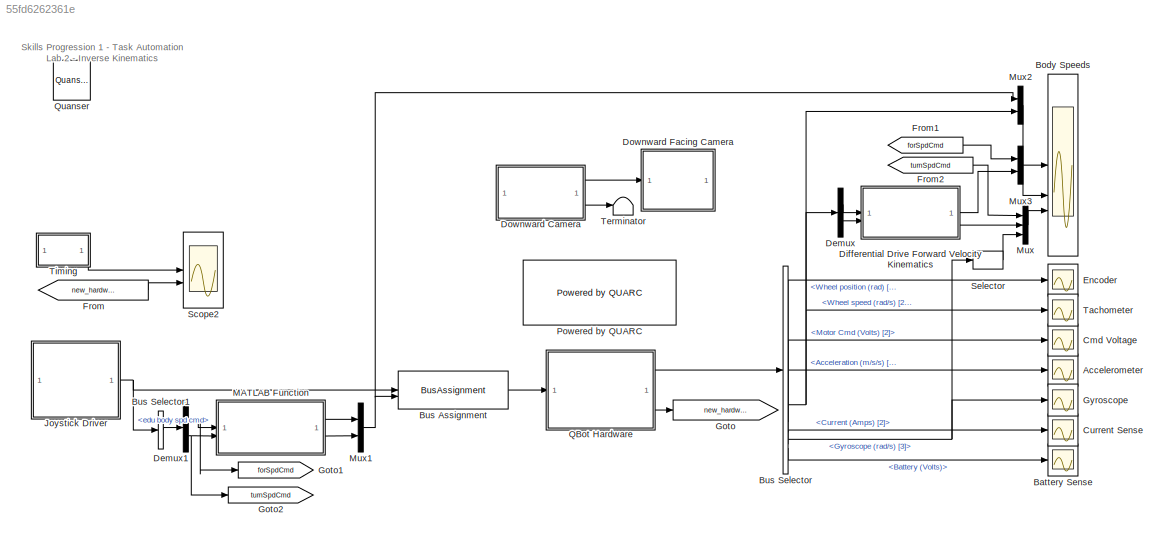
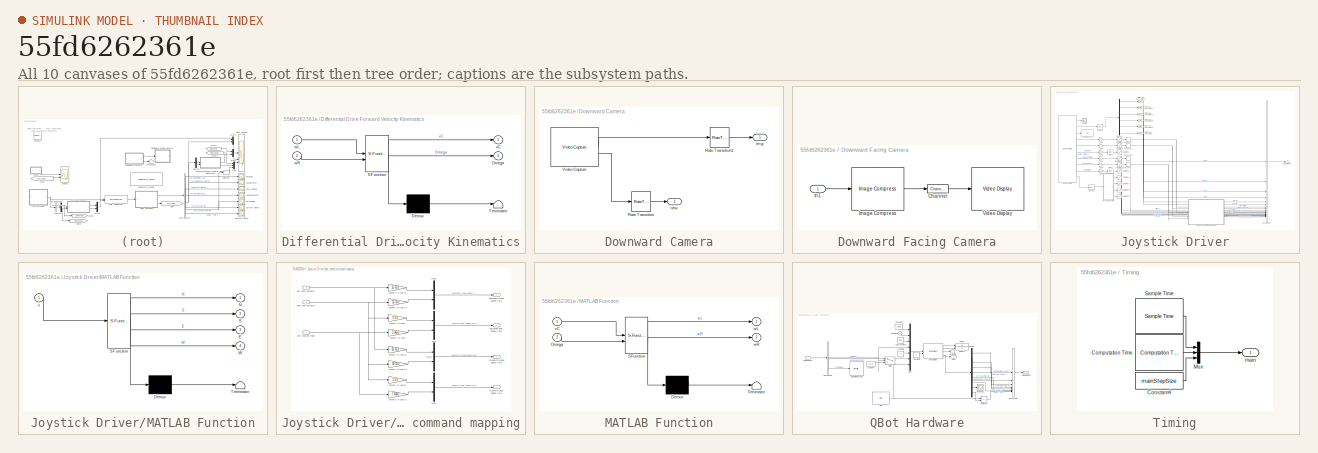
[diagram: thumbnail index - all 10 canvases of the model, root first then tree order]
MODEL slx_55fd6262361e
KIND model
CONFIG AbsTol = auto
CONFIG EnableMultiTasking = on
CONFIG FixedStep = 1/30
CONFIG MaxStep = auto
CONFIG MinStep = auto
CONFIG RelTol = 1e-3
CONFIG SampleTimeConstraint = Unconstrained
CONFIG SolverName = ode1
CONFIG StartTime = 0.0
CONFIG StopTime = inf
WORKSPACE source: mxarray member
WORKSPACE downCamStepSize: Simulink.Parameter (value not decoded)
WORKSPACE lidarStepSize: Simulink.Parameter (value not decoded)
WORKSPACE mainStepSize: Simulink.Parameter (value not decoded)
WORKSPACE mode: Simulink.Parameter (value not decoded)
WORKSPACE realSenseStepSize: Simulink.Parameter (value not decoded)
BLOCK [Scope] Accelerometer
  Floating = off
  NameLocation = right
  NumInputPorts = 1
  ScopeSpecificationString = Simulink.scopes.TimeScopeBlockCfg('CurrentConfiguration', extmgr.ConfigurationSet(extmgr.Configuration('Core','General UI',true),extmgr.Configuration('Core','Source UI',true),extmgr.Configuration('Sources','WiredSimulink',true,'DataLoggingVariableName','ScopeData5'),extmgr.Configuration('Visuals','Time Domain',true,'SerializedDisplays',{struct('MinYLimReal','-1.32758','MaxYLimReal','11.23','YLabel...<+1468ch>
BLOCK [Scope] Battery Sense
  Floating = off
  NameLocation = right
  NumInputPorts = 1
  ScopeSpecificationString = Simulink.scopes.TimeScopeBlockCfg('CurrentConfiguration', extmgr.ConfigurationSet(extmgr.Configuration('Core','General UI',true),extmgr.Configuration('Core','Source UI',true),extmgr.Configuration('Sources','WiredSimulink',true,'DataLoggingVariableName','ScopeData8'),extmgr.Configuration('Visuals','Time Domain',true,'SerializedDisplays',{struct('MinYLimReal','12.81161','MaxYLimReal','12.96349','YLa...<+1408ch>
BLOCK [Scope] Body Speeds
  Floating = off
  NameLocation = right
  NumInputPorts = 3
  ScopeSpecificationString = Simulink.scopes.TimeScopeBlockCfg('CurrentConfiguration', extmgr.ConfigurationSet(extmgr.Configuration('Core','General UI',true),extmgr.Configuration('Core','Source UI',true),extmgr.Configuration('Sources','WiredSimulink',true,'DataLoggingVariableName','ScopeData1'),extmgr.Configuration('Visuals','Time Domain',true,'SerializedDisplays',{struct('MinYLimReal','-20','MaxYLimReal','20','YLabelReal','r...<+3082ch>
BLOCK [BusAssignment] Bus Assignment
  AssignedSignals = edu wheel spd cmd
BLOCK [BusSelector] Bus Selector
  OutputSignals = Wheel position (rad) [2],Wheel speed (rad/s) [2],Motor Cmd (Volts) [2],Acceleration (m/s/s) [3],Gyroscope (rad/s) [3],Current (Amps) [2],Battery (Volts)
BLOCK [BusSelector] Bus Selector1
  OutputSignals = edu body spd cmd
BLOCK [Scope] Cmd Voltage
  Floating = off
  NameLocation = right
  NumInputPorts = 1
  ScopeSpecificationString = Simulink.scopes.TimeScopeBlockCfg('CurrentConfiguration', extmgr.ConfigurationSet(extmgr.Configuration('Core','General UI',true),extmgr.Configuration('Core','Source UI',true),extmgr.Configuration('Sources','WiredSimulink',true,'DataLoggingVariableName','ScopeData4'),extmgr.Configuration('Visuals','Time Domain',true,'SerializedDisplays',{struct('MinYLimReal','-1.00000','MaxYLimReal','1.00000','YLab...<+1441ch>
BLOCK [Scope] Current Sense
  Floating = off
  NameLocation = right
  NumInputPorts = 1
  ScopeSpecificationString = Simulink.scopes.TimeScopeBlockCfg('CurrentConfiguration', extmgr.ConfigurationSet(extmgr.Configuration('Core','General UI',true),extmgr.Configuration('Core','Source UI',true),extmgr.Configuration('Sources','WiredSimulink',true,'DataLoggingVariableName','ScopeData7'),extmgr.Configuration('Visuals','Time Domain',true,'SerializedDisplays',{struct('MinYLimReal','-0.05029','MaxYLimReal','0.45265','YLab...<+1434ch>
BLOCK [Demux] Demux
  Outputs = 2
BLOCK [Demux] Demux1
  Outputs = 2
BLOCK [SubSystem] Differential Drive Forward Velocity Kinematics
  ErrorFcn = Stateflow.Translate.translate
  PermitHierarchicalResolution = ExplicitOnly
  SFBlockType = MATLAB Function
  TreatAsAtomicUnit = on
BLOCK [Demux] Differential Drive Forward Velocity Kinematics/ Demux 
  Outputs = 1
BLOCK [S-Function] Differential Drive Forward Velocity Kinematics/ SFunction 
  EnableBusSupport = on
  FunctionName = sf_sfun
  PortCounts = [2 3]
  SFcnIsStateOwnerBlock = off
  SFunctionDeploymentMode = off
  Tag = Stateflow S-Function 3
BLOCK [Terminator] Differential Drive Forward Velocity Kinematics/ Terminator 
BLOCK [Outport] Differential Drive Forward Velocity Kinematics/Omega
  Port = 2
BLOCK [Outport] Differential Drive Forward Velocity Kinematics/vC
BLOCK [Inport] Differential Drive Forward Velocity Kinematics/wL
BLOCK [Inport] Differential Drive Forward Velocity Kinematics/wR
  Port = 2
BLOCK [SubSystem] Downward Camera
BLOCK [RateTransition] Downward Camera/Rate Transition
BLOCK [RateTransition] Downward Camera/Rate Transition1
  OutPortSampleTime = downCamStepSize*4
BLOCK [Reference] Downward Camera/Video Capture  REF=quarc_library/Multimedia/Video Capture
  SourceBlock = quarc_library/Multimedia/Video Capture
  SourceProductName = QUARC Targets
  SourceType = Video Capture
BLOCK [Outport] Downward Camera/img
BLOCK [Outport] Downward Camera/new
  Port = 2
BLOCK [SubSystem] Downward Facing Camera
  CopyFcn = set_param(gcbh, 'UserData', gcb);\nset_param(gcbh, 'LinkStatus', 'none');
  LoadFcn = set_param(gcbh, 'UserData', gcb);
  NameChangeFcn = video_display_show([get_param(gcbh, 'UserData'), '/Video Display'], 'rename', [gcb, '/Video Display']);\nvideo_display_show([gcb, '/Video Display'], 'add', gcb);\nset_param(gcbh, 'UserData', gcb);
  NameLocation = top
  OpenFcn = video_display_show([gcb, '/Video Display'], 'show', gcb);
  PreDeleteFcn = video_display_show([gcb, '/Video Display'], 'delete');
  StartFcn = video_display_show([gcb, '/Video Display'], 'add', gcb);
  UndoDeleteFcn = set_param(gcbh, 'UserData', gcb);
BLOCK [Reference] Downward Facing Camera/Channel  REF=quarc_library/Signal Routing/Channel
  SourceBlock = quarc_library/Signal Routing/Channel
  SourceProductName = QUARC Targets
  SourceType = Channel
BLOCK [Reference] Downward Facing Camera/Image Compress  REF=quarc_library/Image Processing/Generic/Image Compress
  AttributesFormatString = (%<algorithm>)
  SourceBlock = quarc_library/Image Processing/Generic/Image Compress
  SourceProductName = QUARC Targets
  SourceType = Image Compress
BLOCK [Inport] Downward Facing Camera/In1
BLOCK [Reference] Downward Facing Camera/Video Display  REF=quarc_library/Multimedia/Video Display
  SourceBlock = quarc_library/Multimedia/Video Display
  SourceProductName = QUARC Targets
  SourceType = Video Display
  Tag = inv_kin_student/Downward Facing Camera/Video Display
  UserDataPersistent = on
BLOCK [Scope] Encoder
  Floating = off
  NameLocation = right
  NumInputPorts = 1
  ScopeSpecificationString = Simulink.scopes.TimeScopeBlockCfg('CurrentConfiguration', extmgr.ConfigurationSet(extmgr.Configuration('Core','General UI',true),extmgr.Configuration('Core','Source UI',true),extmgr.Configuration('Sources','WiredSimulink',true,'DataLoggingVariableName','ScopeData2'),extmgr.Configuration('Visuals','Time Domain',true,'SerializedDisplays',{struct('MinYLimReal','-23.46955','MaxYLimReal','23.65434','YL...<+1452ch>
BLOCK [From] From
  GotoTag = new_hardware
BLOCK [From] From1
  GotoTag = forSpdCmd
BLOCK [From] From2
  GotoTag = turnSpdCmd
BLOCK [Goto] Goto
  GotoTag = new_hardware
BLOCK [Goto] Goto1
  GotoTag = forSpdCmd
BLOCK [Goto] Goto2
  GotoTag = turnSpdCmd
BLOCK [Scope] Gyroscope
  Floating = off
  NameLocation = right
  NumInputPorts = 1
  ScopeSpecificationString = Simulink.scopes.TimeScopeBlockCfg('CurrentConfiguration', extmgr.ConfigurationSet(extmgr.Configuration('Core','General UI',true),extmgr.Configuration('Core','Source UI',true),extmgr.Configuration('Sources','WiredSimulink',true,'DataLoggingVariableName','ScopeData6'),extmgr.Configuration('Visuals','Time Domain',true,'SerializedDisplays',{struct('MinYLimReal','-0.40322','MaxYLimReal','1.99912','YLab...<+1468ch>
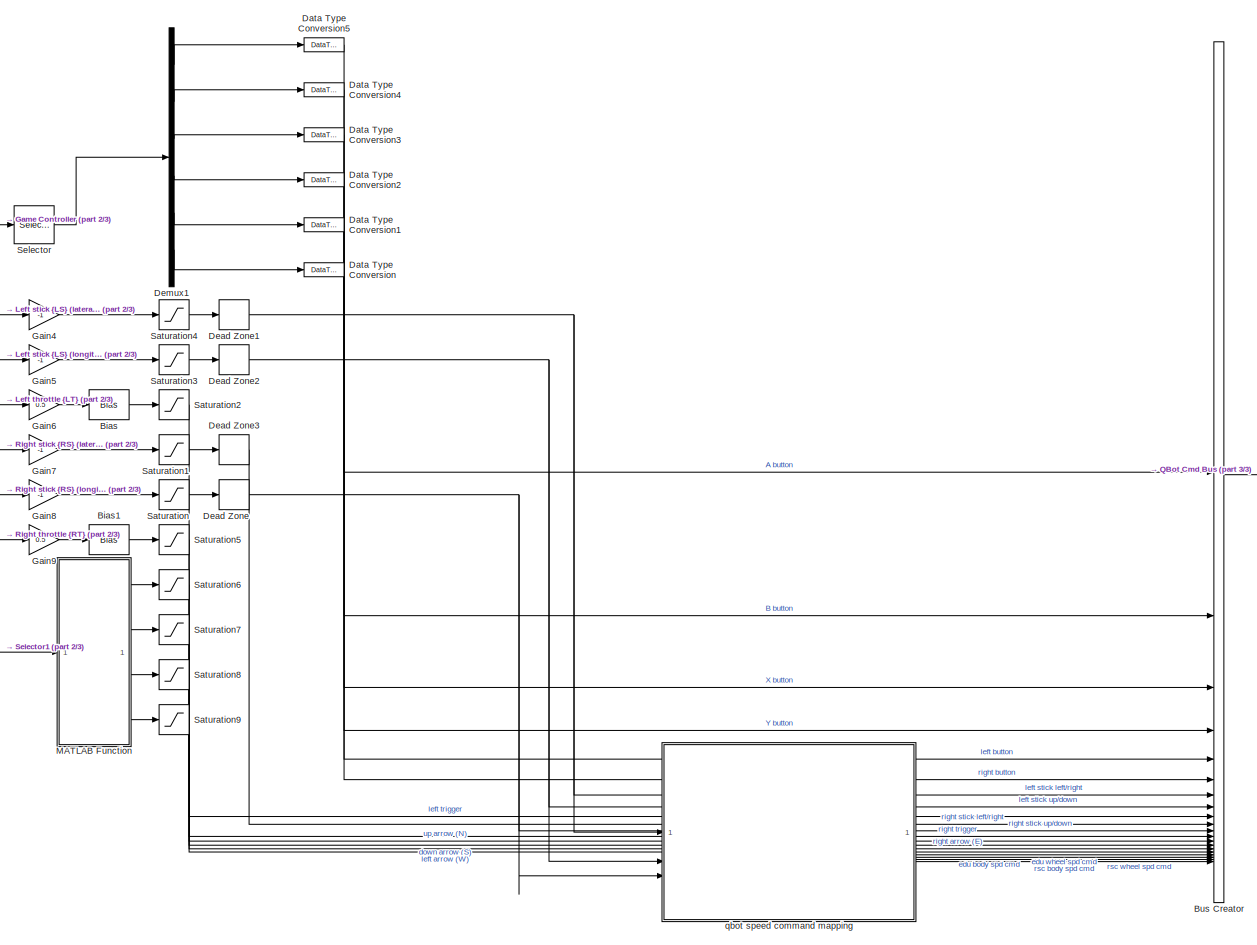
[diagram: Joystick Driver - part 1/3, most of the canvas]
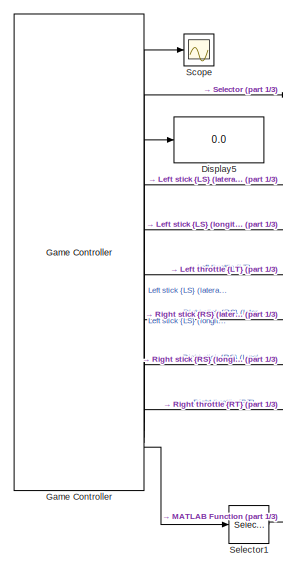
[diagram: Joystick Driver - part 2/3, middle left region]
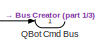
[diagram: Joystick Driver - part 3/3, middle right region]
BLOCK [SubSystem] Joystick Driver
BLOCK [Bias] Joystick Driver/Bias
  Bias = 0.5
  SaturateOnIntegerOverflow = off
BLOCK [Bias] Joystick Driver/Bias1
  Bias = 0.5
  SaturateOnIntegerOverflow = off
BLOCK [BusCreator] Joystick Driver/Bus Creator
  DisplayOption = bar
  InheritFromInputs = on
  Inputs = 20
BLOCK [DataTypeConversion] Joystick Driver/Data Type Conversion
  RndMeth = Floor
  SaturateOnIntegerOverflow = off
BLOCK [DataTypeConversion] Joystick Driver/Data Type Conversion1
  RndMeth = Floor
  SaturateOnIntegerOverflow = off
BLOCK [DataTypeConversion] Joystick Driver/Data Type Conversion2
  RndMeth = Floor
  SaturateOnIntegerOverflow = off
BLOCK [DataTypeConversion] Joystick Driver/Data Type Conversion3
  RndMeth = Floor
  SaturateOnIntegerOverflow = off
BLOCK [DataTypeConversion] Joystick Driver/Data Type Conversion4
  RndMeth = Floor
  SaturateOnIntegerOverflow = off
BLOCK [DataTypeConversion] Joystick Driver/Data Type Conversion5
  RndMeth = Floor
  SaturateOnIntegerOverflow = off
BLOCK [DeadZone] Joystick Driver/Dead Zone
  LowerValue = -0.05
  UpperValue = 0.05
BLOCK [DeadZone] Joystick Driver/Dead Zone1
  LowerValue = -0.05
  UpperValue = 0.05
BLOCK [DeadZone] Joystick Driver/Dead Zone2
  LowerValue = -0.05
  UpperValue = 0.05
BLOCK [DeadZone] Joystick Driver/Dead Zone3
  LowerValue = -0.05
  UpperValue = 0.05
BLOCK [Demux] Joystick Driver/Demux1
  Outputs = 6
BLOCK [Display] Joystick Driver/Display5
  Decimation = 1
BLOCK [Gain] Joystick Driver/Gain4
  Gain = -1
BLOCK [Gain] Joystick Driver/Gain5
  Gain = -1
BLOCK [Gain] Joystick Driver/Gain6
  Gain = 0.5
BLOCK [Gain] Joystick Driver/Gain7
  Gain = -1
BLOCK [Gain] Joystick Driver/Gain8
  Gain = -1
BLOCK [Gain] Joystick Driver/Gain9
  Gain = 0.5
BLOCK [Reference] Joystick Driver/Game Controller  REF=quarc_library/Devices/Peripherals/Target/Game Controller
  SourceBlock = quarc_library/Devices/Peripherals/Target/Game Controller
  SourceProductName = QUARC Targets
  SourceType = Game Controller
BLOCK [SubSystem] Joystick Driver/MATLAB Function
  ErrorFcn = Stateflow.Translate.translate
  PermitHierarchicalResolution = ExplicitOnly
  SFBlockType = MATLAB Function
  TreatAsAtomicUnit = on
BLOCK [Demux] Joystick Driver/MATLAB Function/ Demux 
  Outputs = 1
BLOCK [S-Function] Joystick Driver/MATLAB Function/ SFunction 
  EnableBusSupport = on
  FunctionName = sf_sfun
  PortCounts = [1 5]
  SFcnIsStateOwnerBlock = off
  SFunctionDeploymentMode = off
  Tag = Stateflow S-Function 1
BLOCK [Terminator] Joystick Driver/MATLAB Function/ Terminator 
BLOCK [Outport] Joystick Driver/MATLAB Function/E
  Port = 3
BLOCK [Outport] Joystick Driver/MATLAB Function/N
BLOCK [Outport] Joystick Driver/MATLAB Function/S
  Port = 2
BLOCK [Outport] Joystick Driver/MATLAB Function/W
  Port = 4
BLOCK [Inport] Joystick Driver/MATLAB Function/u
BLOCK [Outport] Joystick Driver/QBot Cmd Bus
BLOCK [Saturate] Joystick Driver/Saturation
  LowerLimit = -1
  UpperLimit = 1
BLOCK [Saturate] Joystick Driver/Saturation1
  LowerLimit = -1
  UpperLimit = 1
BLOCK [Saturate] Joystick Driver/Saturation2
  LowerLimit = 0
  UpperLimit = 1
BLOCK [Saturate] Joystick Driver/Saturation3
  LowerLimit = -1
  UpperLimit = 1
BLOCK [Saturate] Joystick Driver/Saturation4
  LowerLimit = -1
  UpperLimit = 1
BLOCK [Saturate] Joystick Driver/Saturation5
  LowerLimit = 0
  UpperLimit = 1
BLOCK [Saturate] Joystick Driver/Saturation6
  LowerLimit = 0
  UpperLimit = 1
BLOCK [Saturate] Joystick Driver/Saturation7
  LowerLimit = 0
  UpperLimit = 1
BLOCK [Saturate] Joystick Driver/Saturation8
  LowerLimit = 0
  UpperLimit = 1
BLOCK [Saturate] Joystick Driver/Saturation9
  LowerLimit = 0
  UpperLimit = 1
BLOCK [Scope] Joystick Driver/Scope
  Floating = off
  NumInputPorts = 1
  ScopeSpecificationString = Simulink.scopes.TimeScopeBlockCfg('CurrentConfiguration', extmgr.ConfigurationSet(extmgr.Configuration('Core','General UI',true),extmgr.Configuration('Core','Source UI',true),extmgr.Configuration('Sources','WiredSimulink',true),extmgr.Configuration('Visuals','Time Domain',true,'SerializedDisplays',{struct('MinYLimReal','-1.00000','MaxYLimReal','1.00000','YLabelReal','','MinYLimMag','0.00000','MaxY...<+1348ch>
BLOCK [Selector] Joystick Driver/Selector
  IndexOptions = Index vector (dialog)
  Indices = [1:6]
  InputPortWidth = 32
  OutputSizes = 1
BLOCK [Selector] Joystick Driver/Selector1
  IndexOptions = Index vector (dialog)
  Indices = 1
  InputPortWidth = 4
  OutputSizes = 1
BLOCK [SubSystem] Joystick Driver/qbot speed command mapping
BLOCK [Outport] Joystick Driver/qbot speed command mapping/Education Body Speed Cmd
  Port = 2
BLOCK [Outport] Joystick Driver/qbot speed command mapping/Education Wheel Speed Cmd
BLOCK [Mux] Joystick Driver/qbot speed command mapping/Mux
  DisplayOption = bar
  Inputs = 2
BLOCK [Mux] Joystick Driver/qbot speed command mapping/Mux1
  DisplayOption = bar
  Inputs = 2
BLOCK [Mux] Joystick Driver/qbot speed command mapping/Mux2
  DisplayOption = bar
  Inputs = 2
BLOCK [Mux] Joystick Driver/qbot speed command mapping/Mux3
  DisplayOption = bar
  Inputs = 2
BLOCK [Outport] Joystick Driver/qbot speed command mapping/Research  Body Speed Cmd
  Port = 4
BLOCK [Outport] Joystick Driver/qbot speed command mapping/Research Wheel Speed Cmd
  Port = 3
BLOCK [Gain] Joystick Driver/qbot speed command mapping/convert to rad//s
  Gain = 0.7/2
BLOCK [Gain] Joystick Driver/qbot speed command mapping/convert to rad//s 
  Gain = 3.565/2
BLOCK [Gain] Joystick Driver/qbot speed command mapping/convert to rad//s 1
  Gain = 15.75/2
BLOCK [Gain] Joystick Driver/qbot speed command mapping/convert to rad//s 2
  Gain = 7.638/2
BLOCK [Gain] Joystick Driver/qbot speed command mapping/convert to rad//s 3
  Gain = 33.75/2
BLOCK [Gain] Joystick Driver/qbot speed command mapping/convert to rad//s1
  Gain = 15.75/2
BLOCK [Gain] Joystick Driver/qbot speed command mapping/convert to rad//s2
  Gain = 1.5/2
BLOCK [Gain] Joystick Driver/qbot speed command mapping/convert to rad//s3
  Gain = 33.75/2
BLOCK [Inport] Joystick Driver/qbot speed command mapping/left stick left//right
BLOCK [Inport] Joystick Driver/qbot speed command mapping/left stick up//down
  Port = 2
BLOCK [Inport] Joystick Driver/qbot speed command mapping/right stick up//down
  Port = 3
BLOCK [SubSystem] MATLAB Function
  ErrorFcn = Stateflow.Translate.translate
  LibrarySourceBlock = simulink/User-Defined\nFunctions/MATLAB Function
  PermitHierarchicalResolution = ExplicitOnly
  SFBlockType = MATLAB Function
  TreatAsAtomicUnit = on
BLOCK [Demux] MATLAB Function/ Demux 
  Outputs = 1
BLOCK [S-Function] MATLAB Function/ SFunction 
  EnableBusSupport = on
  FunctionName = sf_sfun
  PortCounts = [2 3]
  SFcnIsStateOwnerBlock = off
  SFunctionDeploymentMode = off
  Tag = Stateflow S-Function 7
BLOCK [Terminator] MATLAB Function/ Terminator 
BLOCK [Inport] MATLAB Function/Omega
  Port = 2
BLOCK [Inport] MATLAB Function/vC
BLOCK [Outport] MATLAB Function/wL
BLOCK [Outport] MATLAB Function/wR
  Port = 2
BLOCK [Mux] Mux
  DisplayOption = bar
  Inputs = 3
BLOCK [Mux] Mux1
  DisplayOption = bar
  Inputs = 2
BLOCK [Mux] Mux2
  DisplayOption = bar
  Inputs = 2
BLOCK [Mux] Mux3
  DisplayOption = bar
  Inputs = 2
BLOCK [Reference] Powered by QUARC  REF=quarc_library/Logos/Powered by QUARC
  SourceBlock = quarc_library/Logos/Powered by QUARC
  SourceProductName = QUARC Targets
  SourceType = Powered by QUARC
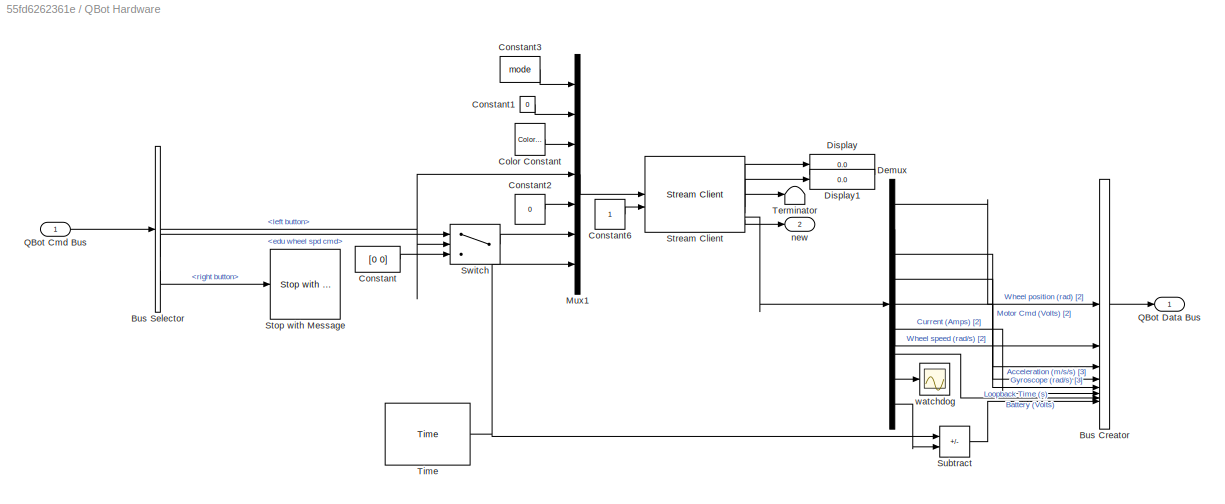
BLOCK [SubSystem] QBot Hardware
BLOCK [BusCreator] QBot Hardware/Bus Creator
  DisplayOption = bar
  InheritFromInputs = on
  Inputs = 8
BLOCK [BusSelector] QBot Hardware/Bus Selector
  OutputSignals = left button,edu wheel spd cmd,right button
BLOCK [Reference] QBot Hardware/Color Constant  REF=quarc_library/Sources/Signals/Color Constant
  SourceBlock = quarc_library/Sources/Signals/Color Constant
  SourceProductName = QUARC Targets
  SourceType = Color Constant
BLOCK [Constant] QBot Hardware/Constant
  Value = [0 0]
BLOCK [Constant] QBot Hardware/Constant1
  Value = 0
BLOCK [Constant] QBot Hardware/Constant2
  Value = 0
BLOCK [Constant] QBot Hardware/Constant3
  Value = mode
BLOCK [Constant] QBot Hardware/Constant6
BLOCK [Demux] QBot Hardware/Demux
  Outputs = [2 2 2 3 3 2 1 1 1]
BLOCK [Display] QBot Hardware/Display
  Decimation = 1
BLOCK [Display] QBot Hardware/Display1
  Decimation = 1
BLOCK [Mux] QBot Hardware/Mux1
  DisplayOption = bar
  Inputs = 7
BLOCK [Inport] QBot Hardware/QBot Cmd Bus
BLOCK [Outport] QBot Hardware/QBot Data Bus
BLOCK [Reference] QBot Hardware/Stop with Message  REF=quarc_library/Sinks/Error Handling/Stop with Message
  AttributesFormatString = "%<message>"
  SourceBlock = quarc_library/Sinks/Error Handling/Stop with Message
  SourceProductName = QUARC Targets
  SourceType = Stop with Message
BLOCK [Reference] QBot Hardware/Stream Client  REF=quarc_library/Communications/Basic/Stream Client
  AttributesFormatString = "tcpip://localhost:18888"
  SourceBlock = quarc_library/Communications/Basic/Stream Client
  SourceProductName = QUARC Targets
  SourceType = Stream Client
BLOCK [Sum] QBot Hardware/Subtract
  IconShape = rectangular
  Inputs = +-
BLOCK [Switch] QBot Hardware/Switch
  Criteria = u2 > Threshold
  InputSameDT = off
  SaturateOnIntegerOverflow = off
BLOCK [Terminator] QBot Hardware/Terminator
BLOCK [Reference] QBot Hardware/Time  REF=quarc_library/Sources/Time/Time
  SourceBlock = quarc_library/Sources/Time/Time
  SourceProductName = QUARC Targets
  SourceType = Time
BLOCK [Outport] QBot Hardware/new
  Port = 2
BLOCK [Scope] QBot Hardware/watchdog
  Floating = off
  NumInputPorts = 1
  ScopeSpecificationString = Simulink.scopes.TimeScopeBlockCfg('CurrentConfiguration', extmgr.ConfigurationSet(extmgr.Configuration('Core','General UI',true),extmgr.Configuration('Core','Source UI',true),extmgr.Configuration('Sources','WiredSimulink',true,'DataLoggingVariableName','ScopeData1'),extmgr.Configuration('Visuals','Time Domain',true),extmgr.Configuration('Tools','Plot Navigation',true),extmgr.Configuration('Tools',...<+40ch>
BLOCK [Reference] Quanser  REF=quarc_library/Logos/Quanser
  SourceBlock = quarc_library/Logos/Quanser
  SourceProductName = QUARC Targets
  SourceType = Powered by Quanser
BLOCK [Scope] Scope2
  Floating = off
  NumInputPorts = 2
  ScopeSpecificationString = Simulink.scopes.TimeScopeBlockCfg('CurrentConfiguration', extmgr.ConfigurationSet(extmgr.Configuration('Core','General UI',true),extmgr.Configuration('Core','Source UI',true),extmgr.Configuration('Sources','WiredSimulink',true,'DataLoggingVariableName','ScopeData1'),extmgr.Configuration('Visuals','Time Domain',true,'SerializedDisplays',{struct('MinYLimReal','-0.00034','MaxYLimReal','0.01939','YLab...<+2225ch>
BLOCK [Selector] Selector
  IndexOptions = Index vector (dialog)
  Indices = 3
  InputPortWidth = 3
  OutputSizes = 1
BLOCK [Scope] Tachometer
  Floating = off
  NameLocation = right
  NumInputPorts = 1
  ScopeSpecificationString = Simulink.scopes.TimeScopeBlockCfg('CurrentConfiguration', extmgr.ConfigurationSet(extmgr.Configuration('Core','General UI',true),extmgr.Configuration('Core','Source UI',true),extmgr.Configuration('Sources','WiredSimulink',true,'DataLoggingVariableName','ScopeData3'),extmgr.Configuration('Visuals','Time Domain',true,'SerializedDisplays',{struct('MinYLimReal','-11.69986','MaxYLimReal','11.67552','YL...<+1449ch>
BLOCK [Terminator] Terminator
BLOCK [SubSystem] Timing
  NameLocation = top
BLOCK [Reference] Timing/Computation Time  REF=quarc_library/Sources/Time/Computation Time
  SourceBlock = quarc_library/Sources/Time/Computation Time
  SourceProductName = QUARC Targets
  SourceType = Computation Time
BLOCK [Constant] Timing/Constant4
  Value = mainStepSize
BLOCK [Mux] Timing/Mux
  DisplayOption = bar
  Inputs = 3
BLOCK [Reference] Timing/Sample Time  REF=quarc_library/Sources/Time/Sample Time
  Priority = -99
  SourceBlock = quarc_library/Sources/Time/Sample Time
  SourceProductName = QUARC Targets
  SourceType = Sample Time
BLOCK [Outport] Timing/main
ANNOTATION (root): Skills Progression 1 - Task Automation Lab 2 - Inverse Kinematics
LINE Bus Assignment:1 -> QBot Hardware:1
LINE Bus Selector1:1 -> Demux1:1
LINE Bus Selector:1 -> Encoder:1
NET Bus Selector:2 -> Demux:1, Mux2:2, Tachometer:1
LINE Bus Selector:3 -> Cmd Voltage:1
LINE Bus Selector:4 -> Accelerometer:1
NET Bus Selector:5 -> Gyroscope:1, Selector:1
LINE Bus Selector:6 -> Current Sense:1
LINE Bus Selector:7 -> Battery Sense:1
NET Demux1:1 -> Goto1:1, MATLAB Function:1
NET Demux1:2 -> Goto2:1, MATLAB Function:2
LINE Demux:1 -> Differential Drive Forward Velocity Kinematics:1
LINE Demux:2 -> Differential Drive Forward Velocity Kinematics:2
LINE Differential Drive Forward Velocity Kinematics:1 -> Mux3:2
LINE Differential Drive Forward Velocity Kinematics:2 -> Mux:2
LINE Downward Camera/Rate Transition1:1 -> Downward Camera/img:1
LINE Downward Camera/Rate Transition:1 -> Downward Camera/new:1
LINE Downward Camera/Video Capture:1 -> Downward Camera/Rate Transition1:1
LINE Downward Camera/Video Capture:2 -> Downward Camera/Rate Transition:1
LINE Downward Camera:1 -> Downward Facing Camera:1
LINE Downward Camera:2 -> Terminator:1
LINE From1:1 -> Mux3:1
LINE From2:1 -> Mux:1
LINE From:1 -> Scope2:2
LINE Joystick Driver/Bias1:1 -> Joystick Driver/Saturation5:1
LINE Joystick Driver/Bias:1 -> Joystick Driver/Saturation2:1
LINE Joystick Driver/Bus Creator:1 -> Joystick Driver/QBot Cmd Bus:1
LINE Joystick Driver/Data Type Conversion1:1 -> Joystick Driver/Bus Creator:5
LINE Joystick Driver/Data Type Conversion2:1 -> Joystick Driver/Bus Creator:4
LINE Joystick Driver/Data Type Conversion3:1 -> Joystick Driver/Bus Creator:3
LINE Joystick Driver/Data Type Conversion4:1 -> Joystick Driver/Bus Creator:2
LINE Joystick Driver/Data Type Conversion5:1 -> Joystick Driver/Bus Creator:1
LINE Joystick Driver/Data Type Conversion:1 -> Joystick Driver/Bus Creator:6
NET Joystick Driver/Dead Zone1:1 -> Joystick Driver/Bus Creator:7, Joystick Driver/qbot speed command mapping:1
NET Joystick Driver/Dead Zone2:1 -> Joystick Driver/Bus Creator:8, Joystick Driver/qbot speed command mapping:2
LINE Joystick Driver/Dead Zone3:1 -> Joystick Driver/Bus Creator:10
NET Joystick Driver/Dead Zone:1 -> Joystick Driver/Bus Creator:11, Joystick Driver/qbot speed command mapping:3
LINE Joystick Driver/Demux1:1 -> Joystick Driver/Data Type Conversion5:1
LINE Joystick Driver/Demux1:2 -> Joystick Driver/Data Type Conversion4:1
LINE Joystick Driver/Demux1:3 -> Joystick Driver/Data Type Conversion3:1
LINE Joystick Driver/Demux1:4 -> Joystick Driver/Data Type Conversion2:1
LINE Joystick Driver/Demux1:5 -> Joystick Driver/Data Type Conversion1:1
LINE Joystick Driver/Demux1:6 -> Joystick Driver/Data Type Conversion:1
LINE Joystick Driver/Gain4:1 -> Joystick Driver/Saturation4:1
LINE Joystick Driver/Gain5:1 -> Joystick Driver/Saturation3:1
LINE Joystick Driver/Gain6:1 -> Joystick Driver/Bias:1
LINE Joystick Driver/Gain7:1 -> Joystick Driver/Saturation1:1
LINE Joystick Driver/Gain8:1 -> Joystick Driver/Saturation:1
LINE Joystick Driver/Gain9:1 -> Joystick Driver/Bias1:1
LINE Joystick Driver/Game Controller:1 -> Joystick Driver/Scope:1
LINE Joystick Driver/Game Controller:10 -> Joystick Driver/Selector1:1
LINE Joystick Driver/Game Controller:2 -> Joystick Driver/Selector:1
LINE Joystick Driver/Game Controller:3 -> Joystick Driver/Display5:1
LINE Joystick Driver/Game Controller:4 -> Joystick Driver/Gain4:1
LINE Joystick Driver/Game Controller:5 -> Joystick Driver/Gain5:1
LINE Joystick Driver/Game Controller:6 -> Joystick Driver/Gain6:1
LINE Joystick Driver/Game Controller:7 -> Joystick Driver/Gain7:1
LINE Joystick Driver/Game Controller:8 -> Joystick Driver/Gain8:1
LINE Joystick Driver/Game Controller:9 -> Joystick Driver/Gain9:1
LINE Joystick Driver/MATLAB Function:1 -> Joystick Driver/Saturation6:1
LINE Joystick Driver/MATLAB Function:2 -> Joystick Driver/Saturation7:1
LINE Joystick Driver/MATLAB Function:3 -> Joystick Driver/Saturation8:1
LINE Joystick Driver/MATLAB Function:4 -> Joystick Driver/Saturation9:1
LINE Joystick Driver/Saturation1:1 -> Joystick Driver/Dead Zone3:1
LINE Joystick Driver/Saturation2:1 -> Joystick Driver/Bus Creator:9
LINE Joystick Driver/Saturation3:1 -> Joystick Driver/Dead Zone2:1
LINE Joystick Driver/Saturation4:1 -> Joystick Driver/Dead Zone1:1
LINE Joystick Driver/Saturation5:1 -> Joystick Driver/Bus Creator:12
LINE Joystick Driver/Saturation6:1 -> Joystick Driver/Bus Creator:13
LINE Joystick Driver/Saturation7:1 -> Joystick Driver/Bus Creator:14
LINE Joystick Driver/Saturation8:1 -> Joystick Driver/Bus Creator:15
LINE Joystick Driver/Saturation9:1 -> Joystick Driver/Bus Creator:16
LINE Joystick Driver/Saturation:1 -> Joystick Driver/Dead Zone:1
LINE Joystick Driver/Selector1:1 -> Joystick Driver/MATLAB Function:1
LINE Joystick Driver/Selector:1 -> Joystick Driver/Demux1:1
LINE Joystick Driver/qbot speed command mapping/Mux1:1 -> Joystick Driver/qbot speed command mapping/Education Wheel Speed Cmd:1
LINE Joystick Driver/qbot speed command mapping/Mux2:1 -> Joystick Driver/qbot speed command mapping/Research  Body Speed Cmd:1
LINE Joystick Driver/qbot speed command mapping/Mux3:1 -> Joystick Driver/qbot speed command mapping/Research Wheel Speed Cmd:1
LINE Joystick Driver/qbot speed command mapping/Mux:1 -> Joystick Driver/qbot speed command mapping/Education Body Speed Cmd:1
LINE Joystick Driver/qbot speed command mapping/convert to rad//s 1:1 -> Joystick Driver/qbot speed command mapping/Mux1:2
LINE Joystick Driver/qbot speed command mapping/convert to rad//s 2:1 -> Joystick Driver/qbot speed command mapping/Mux2:2
LINE Joystick Driver/qbot speed command mapping/convert to rad//s 3:1 -> Joystick Driver/qbot speed command mapping/Mux3:2
LINE Joystick Driver/qbot speed command mapping/convert to rad//s :1 -> Joystick Driver/qbot speed command mapping/Mux:2
LINE Joystick Driver/qbot speed command mapping/convert to rad//s1:1 -> Joystick Driver/qbot speed command mapping/Mux1:1
LINE Joystick Driver/qbot speed command mapping/convert to rad//s2:1 -> Joystick Driver/qbot speed command mapping/Mux2:1
LINE Joystick Driver/qbot speed command mapping/convert to rad//s3:1 -> Joystick Driver/qbot speed command mapping/Mux3:1
LINE Joystick Driver/qbot speed command mapping/convert to rad//s:1 -> Joystick Driver/qbot speed command mapping/Mux:1
NET Joystick Driver/qbot speed command mapping/left stick left//right:1 -> Joystick Driver/qbot speed command mapping/convert to rad//s 2:1, Joystick Driver/qbot speed command mapping/convert to rad//s :1
NET Joystick Driver/qbot speed command mapping/left stick up//down:1 -> Joystick Driver/qbot speed command mapping/convert to rad//s1:1, Joystick Driver/qbot speed command mapping/convert to rad//s3:1
NET Joystick Driver/qbot speed command mapping/right stick up//down:1 -> Joystick Driver/qbot speed command mapping/convert to rad//s 1:1, Joystick Driver/qbot speed command mapping/convert to rad//s 3:1, Joystick Driver/qbot speed command mapping/convert to rad//s2:1, Joystick Driver/qbot speed command mapping/convert to rad//s:1
LINE Joystick Driver/qbot speed command mapping:1 -> Joystick Driver/Bus Creator:17
LINE Joystick Driver/qbot speed command mapping:2 -> Joystick Driver/Bus Creator:18
LINE Joystick Driver/qbot speed command mapping:3 -> Joystick Driver/Bus Creator:19
LINE Joystick Driver/qbot speed command mapping:4 -> Joystick Driver/Bus Creator:20
NET Joystick Driver:1 -> Bus Assignment:1, Bus Selector1:1
LINE MATLAB Function:1 -> Mux1:1
LINE MATLAB Function:2 -> Mux1:2
NET Mux1:1 -> Bus Assignment:2, Mux2:1
LINE Mux2:1 -> Body Speeds:1
LINE Mux3:1 -> Body Speeds:2
LINE Mux:1 -> Body Speeds:3
LINE QBot Hardware/Bus Creator:1 -> QBot Hardware/QBot Data Bus:1
NET QBot Hardware/Bus Selector:1 -> QBot Hardware/Mux1:4, QBot Hardware/Switch:2
LINE QBot Hardware/Bus Selector:2 -> QBot Hardware/Switch:1
LINE QBot Hardware/Bus Selector:3 -> QBot Hardware/Stop with Message:1
LINE QBot Hardware/Color Constant:1 -> QBot Hardware/Mux1:3
LINE QBot Hardware/Constant1:1 -> QBot Hardware/Mux1:2
LINE QBot Hardware/Constant2:1 -> QBot Hardware/Mux1:5
LINE QBot Hardware/Constant3:1 -> QBot Hardware/Mux1:1
LINE QBot Hardware/Constant6:1 -> QBot Hardware/Stream Client:2
LINE QBot Hardware/Constant:1 -> QBot Hardware/Switch:3
LINE QBot Hardware/Demux:1 -> QBot Hardware/Bus Creator:1
LINE QBot Hardware/Demux:2 -> QBot Hardware/Bus Creator:2
LINE QBot Hardware/Demux:3 -> QBot Hardware/Bus Creator:3
LINE QBot Hardware/Demux:4 -> QBot Hardware/Bus Creator:4
LINE QBot Hardware/Demux:5 -> QBot Hardware/Bus Creator:5
LINE QBot Hardware/Demux:6 -> QBot Hardware/Bus Creator:6
LINE QBot Hardware/Demux:7 -> QBot Hardware/Bus Creator:7
LINE QBot Hardware/Demux:8 -> QBot Hardware/watchdog:1
LINE QBot Hardware/Demux:9 -> QBot Hardware/Subtract:2
LINE QBot Hardware/Mux1:1 -> QBot Hardware/Stream Client:1
LINE QBot Hardware/QBot Cmd Bus:1 -> QBot Hardware/Bus Selector:1
LINE QBot Hardware/Stream Client:1 -> QBot Hardware/Display:1
LINE QBot Hardware/Stream Client:2 -> QBot Hardware/Display1:1
LINE QBot Hardware/Stream Client:3 -> QBot Hardware/Terminator:1
LINE QBot Hardware/Stream Client:4 -> QBot Hardware/Demux:1
LINE QBot Hardware/Stream Client:5 -> QBot Hardware/new:1
LINE QBot Hardware/Subtract:1 -> QBot Hardware/Bus Creator:8
LINE QBot Hardware/Switch:1 -> QBot Hardware/Mux1:6
NET QBot Hardware/Time:1 -> QBot Hardware/Mux1:7, QBot Hardware/Subtract:1
LINE QBot Hardware:1 -> Bus Selector:1
LINE QBot Hardware:2 -> Goto:1
LINE Selector:1 -> Mux:3
LINE Timing/Computation Time:1 -> Timing/Mux:2
LINE Timing/Constant4:1 -> Timing/Mux:3
LINE Timing/Mux:1 -> Timing/main:1
LINE Timing/Sample Time:1 -> Timing/Mux:1
LINE Timing:1 -> Scope2:1
note: NET lines group one-source signal fan-out (src -> all destinations, sorted); 1:1 wires keep LINE
CHART Joystick Driver/MATLAB Function states=1 transitions=1
  STATE_LABEL 'eML_blk_kernel()'
  STATE_LABEL 'SCRIPT:\nfunction [N, S, E, W] = fcn(u)\n\nN = 0;\nS = 0;\nE = 0;\nW = 0;\n\nswitch u\n    case 0\n        N = 1;\n    case 3.142\n        S = 1;\n    case 4.712\n        W = 1;\n    case 1.571\n        E = 1;\n    case 3.927\n        S = 1;\n        W = 1;\n    case 2.356\n        S = 1;\n        E = 1;\n    case 0.7854\n        N = 1;\n        E = 1;\n    case 5.498\n        N = 1;\n        W = 1;\nend'
CHART Differential Drive Forward
Velocity Kinematics states=1 transitions=1
  STATE_LABEL 'eML_blk_kernel()'
  STATE_LABEL 'SCRIPT:\nfunction [vC , Omega] = forKin(wL, wR)\n\n% calculate wheel angular velocities\nwheelRadius = 3.5*0.0254/2;\n\nvR = wR * wheelRadius;\nvL = wL * wheelRadius;\n\n% wheelbase\nd=0.3928; \n\n% calculate wheel linear velocities\nvC = (vR + vL)/2;\nOmega = (vR - vL)/d;\n'
CHART MATLAB Function states=1 transitions=1
  STATE_LABEL 'eML_blk_kernel()'
  STATE_LABEL 'SCRIPT:\nfunction [wL, wR] = invKin(vC , Omega)\n\n% wheelbase\nd=0.3928; \n\n% calculate wheel angular velocities\nwheelRadius = 3.5*0.0254/2;\n\n%-----------------Replace with your own code-----------------------%\nwR = 0;\nwL = 0;\n%------------------------------------------------------------------%\n'
CHART  states=0 transitions=0
CHART  states=0 transitions=0
CHART  states=0 transitions=0
